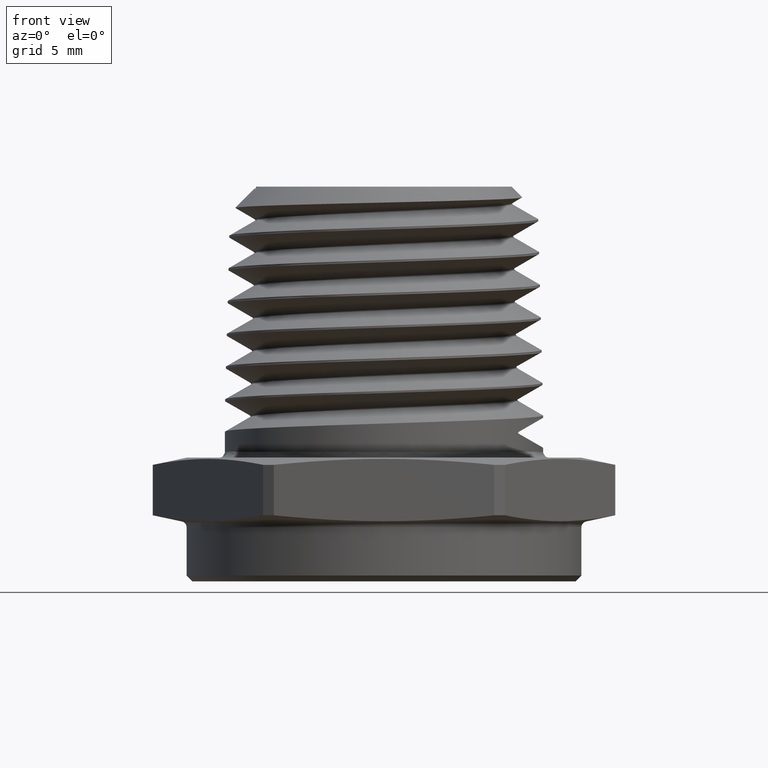
[diagram: clean part render]
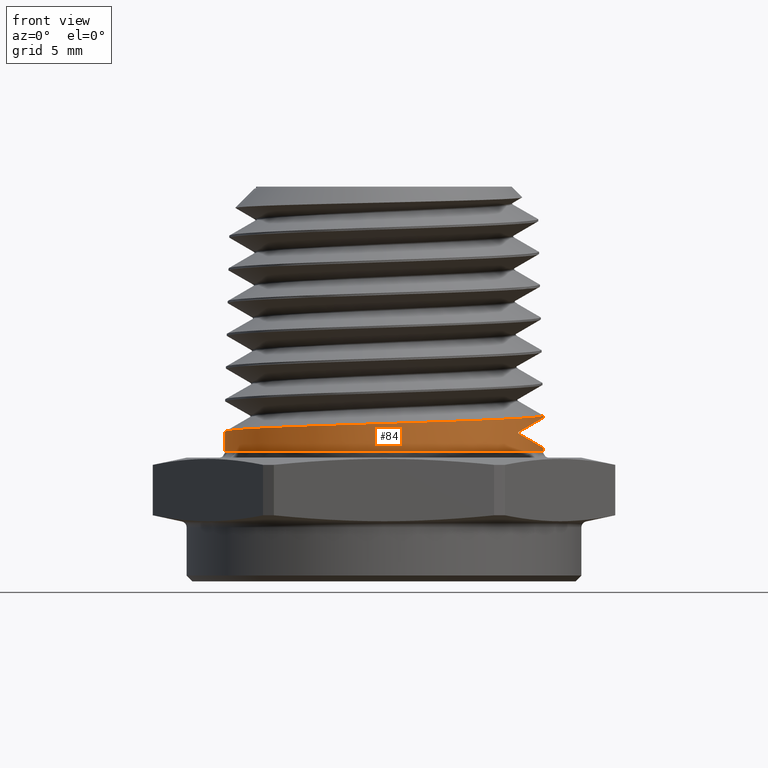
[diagram: same view with one face highlighted and labeled with its STEP entity id]
A machine part, front view. The second image highlights one B-rep face of the part: STEP entity #84.
In plain terms, the highlighted cylindrical surface (partial cylindrical patch) has radius 6.858 mm, axis along (-0, -0, -1).
Its self-contained STEP definition (entity closure, byte-faithful):
#20 =( BOUNDED_CURVE ( )  B_SPLINE_CURVE ( 3, ( #2701, #2694, #2696, #2703 ),
 .UNSPECIFIED., .F., .F. ) 
 B_SPLINE_CURVE_WITH_KNOTS ( ( 4, 4 ),
 ( 2.575675447546196500, 3.141592653589793100 ),
 .UNSPECIFIED. ) 
 CURVE ( )  GEOMETRIC_REPRESENTATION_ITEM ( )  RATIONAL_B_SPLINE_CURVE ( ( 1.000000000000000000, 0.9734890710874317700, 0.9734890710874317700, 1.000000000000000000 ) ) 
 REPRESENTATION_ITEM ( '' )  );
#21 =( BOUNDED_CURVE ( )  B_SPLINE_CURVE ( 3, ( #2695, #2636, #2652, #2697 ),
 .UNSPECIFIED., .F., .F. ) 
 B_SPLINE_CURVE_WITH_KNOTS ( ( 4, 4 ),
 ( 6.739912316315783600E-031, 0.5659172060435961900 ),
 .UNSPECIFIED. ) 
 CURVE ( )  GEOMETRIC_REPRESENTATION_ITEM ( )  RATIONAL_B_SPLINE_CURVE ( ( 1.000000000000000000, 0.9734890710874317700, 0.9734890710874317700, 1.000000000000000000 ) ) 
 REPRESENTATION_ITEM ( '' )  );
#43 = B_SPLINE_CURVE_WITH_KNOTS ( 'NONE', 3,
 ( #2651, #2614, #2613, #2653, #2654, #2655, #2656, #2657, #2658, #2659, #2660, #2661, #2662, #2663, #2664, #2665, #2666, #2667, #2668, #2669, #2670, #2671, #2672, #2673, #2674, #2675, #2676, #2677, #2678, #2679, #2680, #2681, #2682, #2683, #2684, #2685, #2686, #2687, #2688, #2689, #2690, #2691, #2692, #2693 ),
 .UNSPECIFIED., .F., .F.,
 ( 4, 2, 2, 2, 2, 2, 2, 2, 2, 2, 2, 2, 2, 2, 2, 2, 2, 2, 2, 2, 2, 4 ),
 ( 0.02144630403419214800, 0.02211680131704166200, 0.02278729859989117200, 0.02412829316559019600, 0.02546928773128922400, 0.02681028229698824400, 0.02748077957983775800, 0.02815127686268726800, 0.02949227142838629200, 0.03083326599408531300, 0.03150376327693482600, 0.03217426055978433300, 0.03351525512548335400, 0.03485624969118238100, 0.03619724425688140200, 0.03686774153973090800, 0.03753823882258042200, 0.03820873610542992900, 0.03887923338827944200, 0.04022022795397846300, 0.04156122251967747600, 0.04290221708537649700 ),
 .UNSPECIFIED. ) ;
#84 = ADVANCED_FACE ( 'NONE', ( #937 ), #896, .T. ) ;
#154 = EDGE_CURVE ( 'NONE', #560, #564, #1997, .T. ) ;
#179 = EDGE_CURVE ( 'NONE', #605, #595, #43, .T. ) ;
#180 = EDGE_CURVE ( 'NONE', #602, #590, #21, .T. ) ;
#181 = EDGE_CURVE ( 'NONE', #590, #635, #2009, .T. ) ;
#182 = EDGE_CURVE ( 'NONE', #635, #604, #20, .T. ) ;
#259 = EDGE_CURVE ( 'NONE', #595, #604, #2088, .T. ) ;
#263 = EDGE_CURVE ( 'NONE', #602, #564, #2093, .T. ) ;
#265 = EDGE_CURVE ( 'NONE', #605, #560, #2095, .T. ) ;
#296 = CARTESIAN_POINT ( 'NONE',  ( 0.0000000000000000000, 0.0000000000000000000, 0.5699999999999999500 ) ) ;
#520 = ORIENTED_EDGE ( 'NONE', *, *, #182, .T. ) ;
#521 = ORIENTED_EDGE ( 'NONE', *, *, #181, .T. ) ;
#522 = ORIENTED_EDGE ( 'NONE', *, *, #180, .T. ) ;
#523 = ORIENTED_EDGE ( 'NONE', *, *, #263, .F. ) ;
#524 = ORIENTED_EDGE ( 'NONE', *, *, #154, .T. ) ;
#525 = ORIENTED_EDGE ( 'NONE', *, *, #265, .T. ) ;
#526 = ORIENTED_EDGE ( 'NONE', *, *, #179, .F. ) ;
#527 = ORIENTED_EDGE ( 'NONE', *, *, #259, .F. ) ;
#560 = VERTEX_POINT ( 'NONE', #4096 ) ;
#564 = VERTEX_POINT ( 'NONE', #4092 ) ;
#590 = VERTEX_POINT ( 'NONE', #4123 ) ;
#595 = VERTEX_POINT ( 'NONE', #4128 ) ;
#602 = VERTEX_POINT ( 'NONE', #4135 ) ;
#604 = VERTEX_POINT ( 'NONE', #4137 ) ;
#605 = VERTEX_POINT ( 'NONE', #4138 ) ;
#635 = VERTEX_POINT ( 'NONE', #4168 ) ;
#683 = EDGE_LOOP ( 'NONE', ( #527, #526, #525, #524, #523, #522, #521, #520 ) ) ;
#815 = AXIS2_PLACEMENT_3D ( 'NONE', #296, #963, #964 ) ;
#865 = AXIS2_PLACEMENT_3D ( 'NONE', #1793, #1794, #1795 ) ;
#896 = CYLINDRICAL_SURFACE ( 'NONE', #815, 0.2700000000000000200 ) ;
#937 = FACE_OUTER_BOUND ( 'NONE', #683, .T. ) ;
#963 = DIRECTION ( 'NONE',  ( -0.0000000000000000000, -0.0000000000000000000, -1.000000000000000000 ) ) ;
#964 = DIRECTION ( 'NONE',  ( -1.000000000000000000, 0.0000000000000000000, 0.0000000000000000000 ) ) ;
#1793 = CARTESIAN_POINT ( 'NONE',  ( 0.0000000000000000000, 0.0000000000000000000, 0.1200000000000000200 ) ) ;
#1794 = DIRECTION ( 'NONE',  ( -0.0000000000000000000, 0.0000000000000000000, 1.000000000000000000 ) ) ;
#1795 = DIRECTION ( 'NONE',  ( 1.000000000000000000, 0.0000000000000000000, 0.0000000000000000000 ) ) ;
#1997 = CIRCLE ( 'NONE', #865, 0.2700000000000000200 ) ;
#2009 = LINE ( 'NONE', #2698, #2010 ) ;
#2010 = VECTOR ( 'NONE', #2699, 39.37007874015748100 ) ;
#2088 = LINE ( 'NONE', #3574, #2091 ) ;
#2091 = VECTOR ( 'NONE', #3576, 39.37007874015748100 ) ;
#2093 = LINE ( 'NONE', #3648, #2094 ) ;
#2094 = VECTOR ( 'NONE', #3650, 39.37007874015748100 ) ;
#2095 = LINE ( 'NONE', #3649, #2097 ) ;
#2097 = VECTOR ( 'NONE', #3577, 39.37007874015748100 ) ;
#2613 = CARTESIAN_POINT ( 'NONE',  ( -0.2695713126894182500, -0.01759385642360332700, 0.1547846422497659000 ) ) ;
#2614 = CARTESIAN_POINT ( 'NONE',  ( -0.2699999999999837000, -0.008794953315735109400, 0.1545036891527855100 ) ) ;
#2636 = CARTESIAN_POINT ( 'NONE',  ( 0.2700000000000000700, -0.05162421279187955100, 0.1268515041418107900 ) ) ;
#2651 = CARTESIAN_POINT ( 'NONE',  ( -0.2700000000000000200, -5.001907114631542600E-013, 0.1542199171673591700 ) ) ;
#2652 = CARTESIAN_POINT ( 'NONE',  ( 0.2555866325138800300, -0.1011955168305204000, 0.1351730657398513000 ) ) ;
#2653 = CARTESIAN_POINT ( 'NONE',  ( -0.2678418189951953800, -0.03519938076579521400, 0.1553505993778436000 ) ) ;
#2654 = CARTESIAN_POINT ( 'NONE',  ( -0.2665294096649353200, -0.04405426786653738500, 0.1556372229051653800 ) ) ;
#2655 = CARTESIAN_POINT ( 'NONE',  ( -0.2613292069411593000, -0.07015600141033508100, 0.1564959394442890500 ) ) ;
#2656 = CARTESIAN_POINT ( 'NONE',  ( -0.2562085427529516800, -0.08699327844752370600, 0.1570706403780921000 ) ) ;
#2657 = CARTESIAN_POINT ( 'NONE',  ( -0.2427248556651687400, -0.1195629219990981100, 0.1582080544948096200 ) ) ;
#2658 = CARTESIAN_POINT ( 'NONE',  ( -0.2342460099016533400, -0.1354252936150559300, 0.1587759993442193200 ) ) ;
#2659 = CARTESIAN_POINT ( 'NONE',  ( -0.2146332560954799500, -0.1647536606070463300, 0.1599143710891873200 ) ) ;
#2660 = CARTESIAN_POINT ( 'NONE',  ( -0.2034766960379935100, -0.1783565024307200400, 0.1604888792832840100 ) ) ;
#2661 = CARTESIAN_POINT ( 'NONE',  ( -0.1846908465977701600, -0.1971490378633973000, 0.1613462659691343400 ) ) ;
#2662 = CARTESIAN_POINT ( 'NONE',  ( -0.1780526666197655200, -0.2031642470530231100, 0.1616319531629924200 ) ) ;
#2663 = CARTESIAN_POINT ( 'NONE',  ( -0.1643536124831832000, -0.2143976525868667700, 0.1621987406835216900 ) ) ;
#2664 = CARTESIAN_POINT ( 'NONE',  ( -0.1572687625205452500, -0.2196449807791963900, 0.1624810564436784700 ) ) ;
#2665 = CARTESIAN_POINT ( 'NONE',  ( -0.1353229990580759600, -0.2343015384304528400, 0.1633325145711721800 ) ) ;
#2666 = CARTESIAN_POINT ( 'NONE',  ( -0.1197462156351852500, -0.2426490697059966700, 0.1639096354386822800 ) ) ;
#2667 = CARTESIAN_POINT ( 'NONE',  ( -0.08680748156477063900, -0.2562853650377170900, 0.1650598386590417800 ) ) ;
#2668 = CARTESIAN_POINT ( 'NONE',  ( -0.06993436903124182500, -0.2613788557705512500, 0.1656161909145366700 ) ) ;
#2669 = CARTESIAN_POINT ( 'NONE',  ( -0.04404320137689168200, -0.2665288482817661500, 0.1664678984822139700 ) ) ;
#2670 = CARTESIAN_POINT ( 'NONE',  ( -0.03531516416299468300, -0.2678274284267262400, 0.1667540584754175800 ) ) ;
#2671 = CARTESIAN_POINT ( 'NONE',  ( -0.01765901179647520100, -0.2695678978289225400, 0.1673313463629128900 ) ) ;
#2672 = CARTESIAN_POINT ( 'NONE',  ( -0.008717651430963034200, -0.2700041602211422600, 0.1676228758266192200 ) ) ;
#2673 = CARTESIAN_POINT ( 'NONE',  ( 0.01781903432141208900, -0.2699915886627516900, 0.1684789999499088900 ) ) ;
#2674 = CARTESIAN_POINT ( 'NONE',  ( 0.03532407146534340100, -0.2682610895868286500, 0.1690342919854318500 ) ) ;
#2675 = CARTESIAN_POINT ( 'NONE',  ( 0.06996214507352305200, -0.2613754014208538600, 0.1701736929657151300 ) ) ;
#2676 = CARTESIAN_POINT ( 'NONE',  ( 0.08716127382253201200, -0.2561506209985695000, 0.1707606480680822800 ) ) ;
#2677 = CARTESIAN_POINT ( 'NONE',  ( 0.1197006507650230100, -0.2426560992407756900, 0.1718971371042666000 ) ) ;
#2678 = CARTESIAN_POINT ( 'NONE',  ( 0.1352342274958915900, -0.2343662634558896200, 0.1724529477603488300 ) ) ;
#2679 = CARTESIAN_POINT ( 'NONE',  ( 0.1573990173870102600, -0.2195552544549438100, 0.1733130309303055300 ) ) ;
#2680 = CARTESIAN_POINT ( 'NONE',  ( 0.1645715970072501900, -0.2142294061205554400, 0.1736027718416454100 ) ) ;
#2681 = CARTESIAN_POINT ( 'NONE',  ( 0.1782239742318967600, -0.2030129650964953000, 0.1741777054676413300 ) ) ;
#2682 = CARTESIAN_POINT ( 'NONE',  ( 0.1847436577773721700, -0.1970967437169843200, 0.1744644049361009100 ) ) ;
#2683 = CARTESIAN_POINT ( 'NONE',  ( 0.1971783899747727200, -0.1846565135589801600, 0.1750318998008235600 ) ) ;
#2684 = CARTESIAN_POINT ( 'NONE',  ( 0.2030934343928168000, -0.1781325031214407400, 0.1753127516604415800 ) ) ;
#2685 = CARTESIAN_POINT ( 'NONE',  ( 0.2143094234644697400, -0.1644676344333623200, 0.1758783329937357300 ) ) ;
#2686 = CARTESIAN_POINT ( 'NONE',  ( 0.2196370295960178900, -0.1572845135513336900, 0.1761646899018146900 ) ) ;
#2687 = CARTESIAN_POINT ( 'NONE',  ( 0.2344260221439851400, -0.1351288719449484600, 0.1770241763451938800 ) ) ;
#2688 = CARTESIAN_POINT ( 'NONE',  ( 0.2427080019163840000, -0.1195961187373650600, 0.1775990222788825000 ) ) ;
#2689 = CARTESIAN_POINT ( 'NONE',  ( 0.2561917384781789400, -0.08704136342460271100, 0.1787359389610083100 ) ) ;
#2690 = CARTESIAN_POINT ( 'NONE',  ( 0.2614093399096278400, -0.06983323064915233900, 0.1793037517384225800 ) ) ;
#2691 = CARTESIAN_POINT ( 'NONE',  ( 0.2682758964619655400, -0.03520747750711233200, 0.1804427345998397000 ) ) ;
#2692 = CARTESIAN_POINT ( 'NONE',  ( 0.2700000000000000200, -0.01770134612981979000, 0.1810171905908745900 ) ) ;
#2693 = CARTESIAN_POINT ( 'NONE',  ( 0.2700000000000000700, -1.047191248815829800E-015, 0.1815883301928804800 ) ) ;
#2694 = CARTESIAN_POINT ( 'NONE',  ( 0.2555866325138800300, -0.1011955168305205400, 0.1692487401494215400 ) ) ;
#2695 = CARTESIAN_POINT ( 'NONE',  ( 0.2700000000000000200, 5.166896526034304000E-016, 0.1268515041418107600 ) ) ;
#2696 = CARTESIAN_POINT ( 'NONE',  ( 0.2700000000000000700, -0.05162421279187962000, 0.1775703017474618800 ) ) ;
#2697 = CARTESIAN_POINT ( 'NONE',  ( 0.2279062328241049400, -0.1447713681635192400, 0.1511543519520194800 ) ) ;
#2698 = CARTESIAN_POINT ( 'NONE',  ( 0.2279062328240778500, -0.1447713681635192100, 0.5700000000000147200 ) ) ;
#2699 = DIRECTION ( 'NONE',  ( 0.0000000000000000000, 0.0000000000000000000, 1.000000000000000000 ) ) ;
#2701 = CARTESIAN_POINT ( 'NONE',  ( 0.2279062328241048000, -0.1447713681635192400, 0.1532674539372532700 ) ) ;
#2703 = CARTESIAN_POINT ( 'NONE',  ( 0.2700000000000000200, 5.166896526034304000E-016, 0.1775703017474619700 ) ) ;
#3574 = CARTESIAN_POINT ( 'NONE',  ( 0.2700000000000000200, 3.306546357697853700E-017, 0.5699999999999999500 ) ) ;
#3576 = DIRECTION ( 'NONE',  ( -0.0000000000000000000, -0.0000000000000000000, -1.000000000000000000 ) ) ;
#3577 = DIRECTION ( 'NONE',  ( -0.0000000000000000000, -0.0000000000000000000, -1.000000000000000000 ) ) ;
#3648 = CARTESIAN_POINT ( 'NONE',  ( 0.2700000000000000200, 3.306546357697853700E-017, 0.5699999999999999500 ) ) ;
#3649 = CARTESIAN_POINT ( 'NONE',  ( -0.2700000000000000200, 0.0000000000000000000, 0.5699999999999999500 ) ) ;
#3650 = DIRECTION ( 'NONE',  ( -0.0000000000000000000, -0.0000000000000000000, -1.000000000000000000 ) ) ;
#4092 = CARTESIAN_POINT ( 'NONE',  ( 0.2700000000000000200, 3.306546357697853700E-017, 0.1200000000000000200 ) ) ;
#4096 = CARTESIAN_POINT ( 'NONE',  ( -0.2700000000000000200, 0.0000000000000000000, 0.1200000000000000200 ) ) ;
#4123 = CARTESIAN_POINT ( 'NONE',  ( 0.2279062328241049400, -0.1447713681635192400, 0.1511543519520194800 ) ) ;
#4128 = CARTESIAN_POINT ( 'NONE',  ( 0.2700000000000000700, -1.047191248815829800E-015, 0.1815883301928804800 ) ) ;
#4135 = CARTESIAN_POINT ( 'NONE',  ( 0.2700000000000000200, 5.166896526034304000E-016, 0.1268515041418107600 ) ) ;
#4137 = CARTESIAN_POINT ( 'NONE',  ( 0.2700000000000000200, 5.166896526034304000E-016, 0.1775703017474619700 ) ) ;
#4138 = CARTESIAN_POINT ( 'NONE',  ( -0.2700000000000000200, -5.001907114631542600E-013, 0.1542199171673591700 ) ) ;
#4168 = CARTESIAN_POINT ( 'NONE',  ( 0.2279062328241048000, -0.1447713681635192400, 0.1532674539372532700 ) ) ;